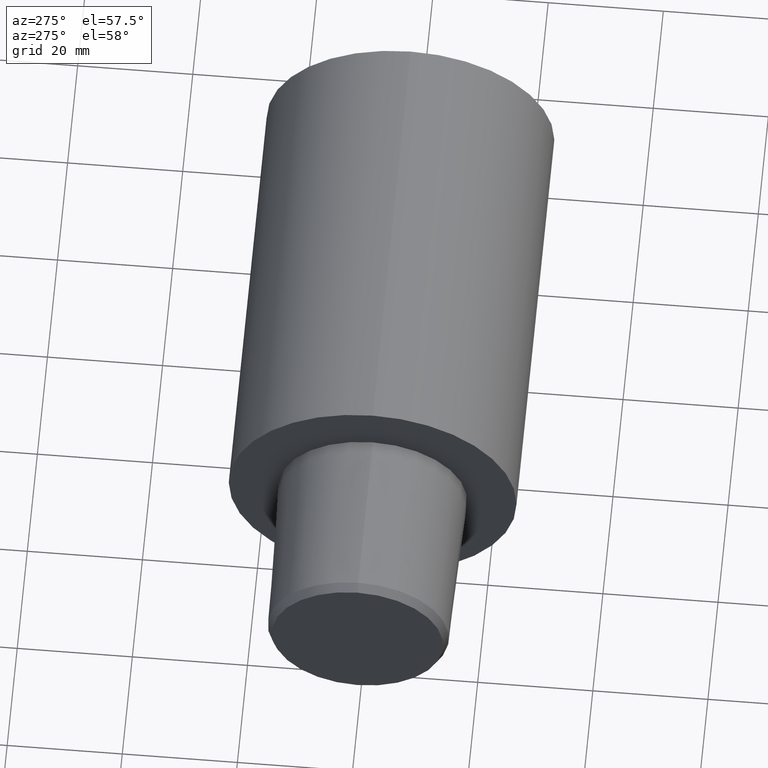
[diagram: clean part render]
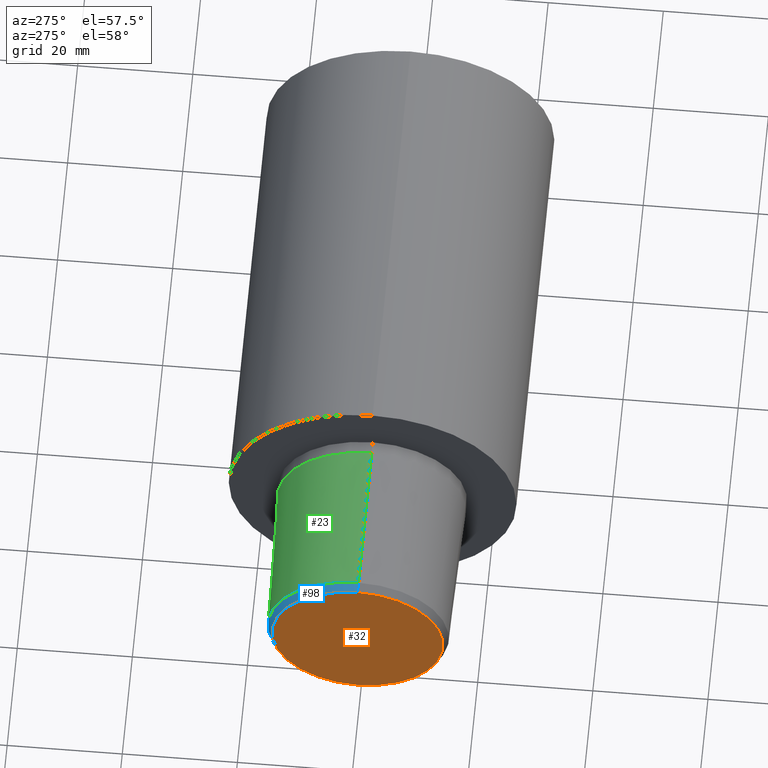
[diagram: same view with three faces highlighted in distinct colors, each labeled with its STEP entity id]
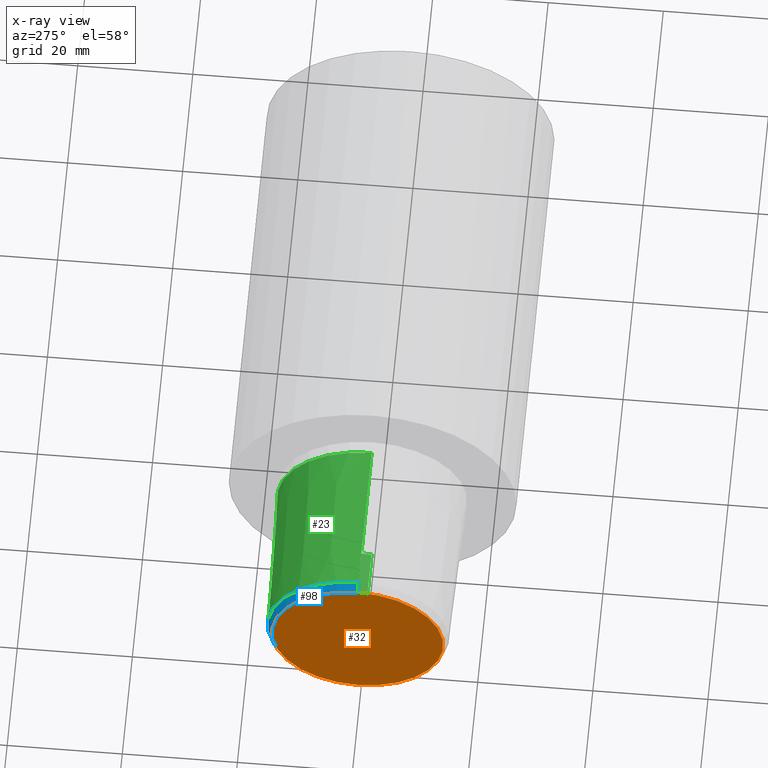
[diagram: x-ray of the same camera — body ghosted, the three highlighted faces saturated]
A machine part, auxiliary view with three faces highlighted in distinct colors.
The next image is the same camera in x-ray (body ghosted, the three faces saturated) — at least one of them is partly hidden behind the body in this view.
Their STEP definitions:

[orange] entity #32 — the highlighted planar face has unit normal (-1, 0, 0).
#5 = EDGE_CURVE ( 'NONE', #42, #72, #73, .T. ) ;
#16 = EDGE_LOOP ( 'NONE', ( #37, #183 ) ) ;
#18 = PLANE ( 'NONE',  #273 ) ;
#26 = AXIS2_PLACEMENT_3D ( 'NONE', #46, #207, #291 ) ;
#32 = ADVANCED_FACE ( 'NONE', ( #265 ), #18, .T. ) ;
#37 = ORIENTED_EDGE ( 'NONE', *, *, #254, .F. ) ;
#42 = VERTEX_POINT ( 'NONE', #264 ) ;
#46 = CARTESIAN_POINT ( 'NONE',  ( -29.99999996776130118, 0.000000000000000000, 0.000000000000000000 ) ) ;
#72 = VERTEX_POINT ( 'NONE', #181 ) ;
#73 = CIRCLE ( 'NONE', #26, 14.87641846198772733 ) ;
#79 = DIRECTION ( 'NONE',  ( -1.000000000000000000, 0.000000000000000000, 0.000000000000000000 ) ) ;
#139 = DIRECTION ( 'NONE',  ( 0.000000000000000000, 0.000000000000000000, -1.000000000000000000 ) ) ;
#178 = AXIS2_PLACEMENT_3D ( 'NONE', #190, #272, #139 ) ;
#181 = CARTESIAN_POINT ( 'NONE',  ( -29.99999996776130118, 0.000000000000000000, -14.87641846198772733 ) ) ;
#183 = ORIENTED_EDGE ( 'NONE', *, *, #5, .F. ) ;
#190 = CARTESIAN_POINT ( 'NONE',  ( -29.99999996776130118, 0.000000000000000000, 0.000000000000000000 ) ) ;
#207 = DIRECTION ( 'NONE',  ( 1.000000000000000000, 0.000000000000000000, 0.000000000000000000 ) ) ;
#208 = DIRECTION ( 'NONE',  ( 0.000000000000000000, 0.000000000000000000, 1.000000000000000000 ) ) ;
#254 = EDGE_CURVE ( 'NONE', #72, #42, #300, .T. ) ;
#264 = CARTESIAN_POINT ( 'NONE',  ( -29.99999996776130118, 1.874864587049208810E-15, 14.87641846198772733 ) ) ;
#265 = FACE_OUTER_BOUND ( 'NONE', #16, .T. ) ;
#272 = DIRECTION ( 'NONE',  ( 1.000000000000000000, 0.000000000000000000, 0.000000000000000000 ) ) ;
#273 = AXIS2_PLACEMENT_3D ( 'NONE', #322, #79, #208 ) ;
#291 = DIRECTION ( 'NONE',  ( 0.000000000000000000, 0.000000000000000000, -1.000000000000000000 ) ) ;
#300 = CIRCLE ( 'NONE', #178, 14.87641846198772733 ) ;
#322 = CARTESIAN_POINT ( 'NONE',  ( -29.99999996776130118, 0.000000000000000000, 0.000000000000000000 ) ) ;

[blue] entity #98 — the highlighted conical surface has half-angle 30 deg.
#4 = CARTESIAN_POINT ( 'NONE',  ( -28.49999997092999848, 0.000000000000000000, -15.74244386394270734 ) ) ;
#12 = ORIENTED_EDGE ( 'NONE', *, *, #53, .F. ) ;
#19 = EDGE_CURVE ( 'NONE', #42, #262, #158, .T. ) ;
#24 = DIRECTION ( 'NONE',  ( 0.8660254037844387076, 0.000000000000000000, -0.4999999999999998890 ) ) ;
#42 = VERTEX_POINT ( 'NONE', #264 ) ;
#53 = EDGE_CURVE ( 'NONE', #72, #287, #128, .T. ) ;
#58 = DIRECTION ( 'NONE',  ( 1.000000000000000000, 0.000000000000000000, 0.000000000000000000 ) ) ;
#72 = VERTEX_POINT ( 'NONE', #181 ) ;
#87 = CIRCLE ( 'NONE', #327, 15.74244386394270734 ) ;
#98 = ADVANCED_FACE ( 'NONE', ( #132 ), #242, .T. ) ;
#107 = DIRECTION ( 'NONE',  ( 0.000000000000000000, 0.000000000000000000, -1.000000000000000000 ) ) ;
#108 = EDGE_LOOP ( 'NONE', ( #318, #237, #341, #12 ) ) ;
#117 = DIRECTION ( 'NONE',  ( 0.000000000000000000, 0.000000000000000000, -1.000000000000000000 ) ) ;
#128 = LINE ( 'NONE', #200, #153 ) ;
#130 = VECTOR ( 'NONE', #184, 1000.000000000000000 ) ;
#132 = FACE_OUTER_BOUND ( 'NONE', #108, .T. ) ;
#138 = CARTESIAN_POINT ( 'NONE',  ( -28.49999997092999848, 1.927893348873434490E-15, 15.74244386394270734 ) ) ;
#139 = DIRECTION ( 'NONE',  ( 0.000000000000000000, 0.000000000000000000, -1.000000000000000000 ) ) ;
#153 = VECTOR ( 'NONE', #24, 1000.000000000000000 ) ;
#158 = LINE ( 'NONE', #204, #130 ) ;
#178 = AXIS2_PLACEMENT_3D ( 'NONE', #190, #272, #139 ) ;
#181 = CARTESIAN_POINT ( 'NONE',  ( -29.99999996776130118, 0.000000000000000000, -14.87641846198772733 ) ) ;
#184 = DIRECTION ( 'NONE',  ( 0.8660254037844387076, 6.123233995736748780E-17, 0.4999999999999998890 ) ) ;
#190 = CARTESIAN_POINT ( 'NONE',  ( -29.99999996776130118, 0.000000000000000000, 0.000000000000000000 ) ) ;
#200 = CARTESIAN_POINT ( 'NONE',  ( -28.49999997092999848, 0.000000000000000000, -15.74244386394270734 ) ) ;
#204 = CARTESIAN_POINT ( 'NONE',  ( -28.49999997092999848, 1.927893348873434490E-15, 15.74244386394270734 ) ) ;
#237 = ORIENTED_EDGE ( 'NONE', *, *, #19, .T. ) ;
#238 = CARTESIAN_POINT ( 'NONE',  ( -28.49999997092999848, 0.000000000000000000, 0.000000000000000000 ) ) ;
#242 = CONICAL_SURFACE ( 'NONE', #268, 15.74244386394270734, 0.5235987755982987046 ) ;
#254 = EDGE_CURVE ( 'NONE', #72, #42, #300, .T. ) ;
#262 = VERTEX_POINT ( 'NONE', #138 ) ;
#264 = CARTESIAN_POINT ( 'NONE',  ( -29.99999996776130118, 1.874864587049208810E-15, 14.87641846198772733 ) ) ;
#268 = AXIS2_PLACEMENT_3D ( 'NONE', #238, #351, #107 ) ;
#272 = DIRECTION ( 'NONE',  ( 1.000000000000000000, 0.000000000000000000, 0.000000000000000000 ) ) ;
#287 = VERTEX_POINT ( 'NONE', #4 ) ;
#300 = CIRCLE ( 'NONE', #178, 14.87641846198772733 ) ;
#304 = CARTESIAN_POINT ( 'NONE',  ( -28.49999997092999848, 0.000000000000000000, 0.000000000000000000 ) ) ;
#311 = EDGE_CURVE ( 'NONE', #287, #262, #87, .T. ) ;
#318 = ORIENTED_EDGE ( 'NONE', *, *, #254, .T. ) ;
#327 = AXIS2_PLACEMENT_3D ( 'NONE', #304, #58, #117 ) ;
#341 = ORIENTED_EDGE ( 'NONE', *, *, #311, .F. ) ;
#351 = DIRECTION ( 'NONE',  ( 1.000000000000000000, 0.000000000000000000, 0.000000000000000000 ) ) ;

[green] entity #23 — the highlighted conical surface has half-angle 1.432 deg.
#4 = CARTESIAN_POINT ( 'NONE',  ( -28.49999997092999848, 0.000000000000000000, -15.74244386394270734 ) ) ;
#9 = ORIENTED_EDGE ( 'NONE', *, *, #333, .F. ) ;
#22 = DIRECTION ( 'NONE',  ( 0.000000000000000000, 0.000000000000000000, -1.000000000000000000 ) ) ;
#23 = ADVANCED_FACE ( 'NONE', ( #134 ), #140, .T. ) ;
#29 = DIRECTION ( 'NONE',  ( 1.000000000000000000, 0.000000000000000000, 0.000000000000000000 ) ) ;
#31 = DIRECTION ( 'NONE',  ( 0.000000000000000000, 0.000000000000000000, -1.000000000000000000 ) ) ;
#44 = AXIS2_PLACEMENT_3D ( 'NONE', #205, #347, #22 ) ;
#58 = DIRECTION ( 'NONE',  ( 1.000000000000000000, 0.000000000000000000, 0.000000000000000000 ) ) ;
#63 = ORIENTED_EDGE ( 'NONE', *, *, #258, .T. ) ;
#69 = ORIENTED_EDGE ( 'NONE', *, *, #206, .F. ) ;
#80 = LINE ( 'NONE', #299, #188 ) ;
#87 = CIRCLE ( 'NONE', #327, 15.74244386394270734 ) ;
#103 = ORIENTED_EDGE ( 'NONE', *, *, #311, .T. ) ;
#117 = DIRECTION ( 'NONE',  ( 0.000000000000000000, 0.000000000000000000, -1.000000000000000000 ) ) ;
#125 = EDGE_LOOP ( 'NONE', ( #103, #63, #69, #9 ) ) ;
#134 = FACE_OUTER_BOUND ( 'NONE', #125, .T. ) ;
#137 = CARTESIAN_POINT ( 'NONE',  ( -2.199937517756067606, 0.000000000000000000, 0.000000000000000000 ) ) ;
#138 = CARTESIAN_POINT ( 'NONE',  ( -28.49999997092999848, 1.927893348873434490E-15, 15.74244386394270734 ) ) ;
#140 = CONICAL_SURFACE ( 'NONE', #44, 16.40000330327199762, 0.02499699292341668252 ) ;
#141 = DIRECTION ( 'NONE',  ( 0.9996875914402667540, 3.060929943787498310E-18, 0.02499438977767824352 ) ) ;
#144 = CIRCLE ( 'NONE', #252, 16.40000330327199762 ) ;
#152 = VERTEX_POINT ( 'NONE', #164 ) ;
#156 = VERTEX_POINT ( 'NONE', #354 ) ;
#164 = CARTESIAN_POINT ( 'NONE',  ( -2.199937517756067606, 2.008421155135807723E-15, 16.40000330327199762 ) ) ;
#188 = VECTOR ( 'NONE', #141, 999.9999999999998863 ) ;
#195 = LINE ( 'NONE', #275, #209 ) ;
#205 = CARTESIAN_POINT ( 'NONE',  ( -2.199937517756067606, 0.000000000000000000, 0.000000000000000000 ) ) ;
#206 = EDGE_CURVE ( 'NONE', #156, #152, #144, .T. ) ;
#209 = VECTOR ( 'NONE', #284, 999.9999999999998863 ) ;
#252 = AXIS2_PLACEMENT_3D ( 'NONE', #137, #29, #31 ) ;
#258 = EDGE_CURVE ( 'NONE', #262, #152, #80, .T. ) ;
#262 = VERTEX_POINT ( 'NONE', #138 ) ;
#275 = CARTESIAN_POINT ( 'NONE',  ( -2.199937517756067606, 0.000000000000000000, -16.40000330327199762 ) ) ;
#284 = DIRECTION ( 'NONE',  ( 0.9996875914402667540, 0.000000000000000000, -0.02499438977767824352 ) ) ;
#287 = VERTEX_POINT ( 'NONE', #4 ) ;
#299 = CARTESIAN_POINT ( 'NONE',  ( -2.199937517756067606, 2.008421155135807723E-15, 16.40000330327199762 ) ) ;
#304 = CARTESIAN_POINT ( 'NONE',  ( -28.49999997092999848, 0.000000000000000000, 0.000000000000000000 ) ) ;
#311 = EDGE_CURVE ( 'NONE', #287, #262, #87, .T. ) ;
#327 = AXIS2_PLACEMENT_3D ( 'NONE', #304, #58, #117 ) ;
#333 = EDGE_CURVE ( 'NONE', #287, #156, #195, .T. ) ;
#347 = DIRECTION ( 'NONE',  ( 1.000000000000000000, 0.000000000000000000, 0.000000000000000000 ) ) ;
#354 = CARTESIAN_POINT ( 'NONE',  ( -2.199937517756067606, 0.000000000000000000, -16.40000330327199762 ) ) ;